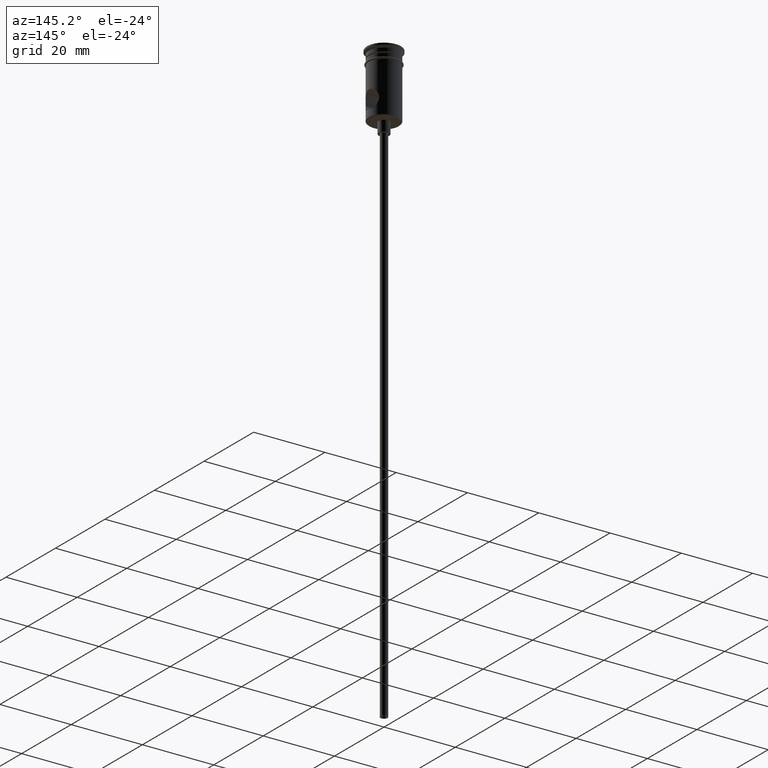
[diagram: clean part render]
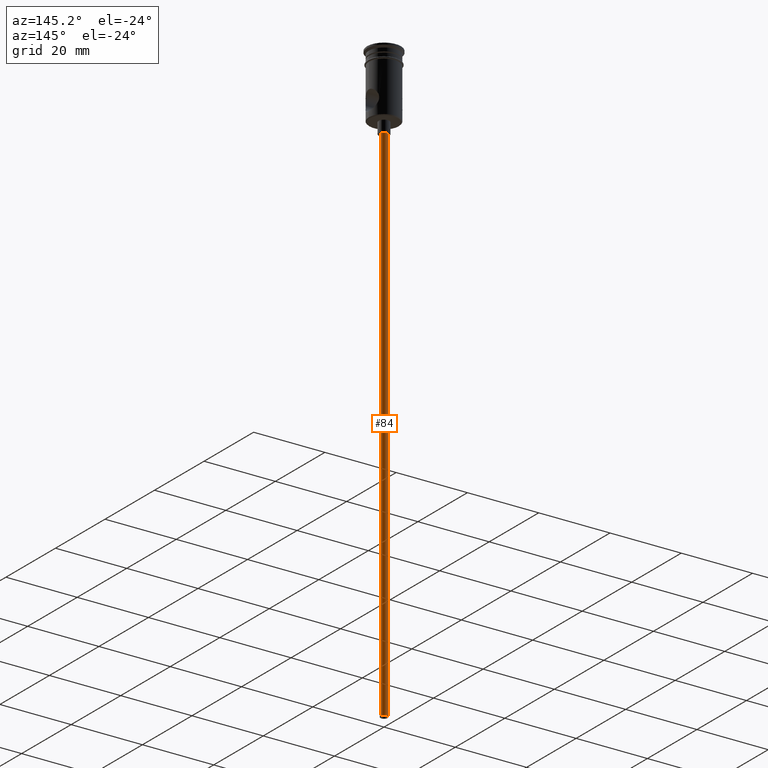
[diagram: same view with one face highlighted and labeled with its STEP entity id]
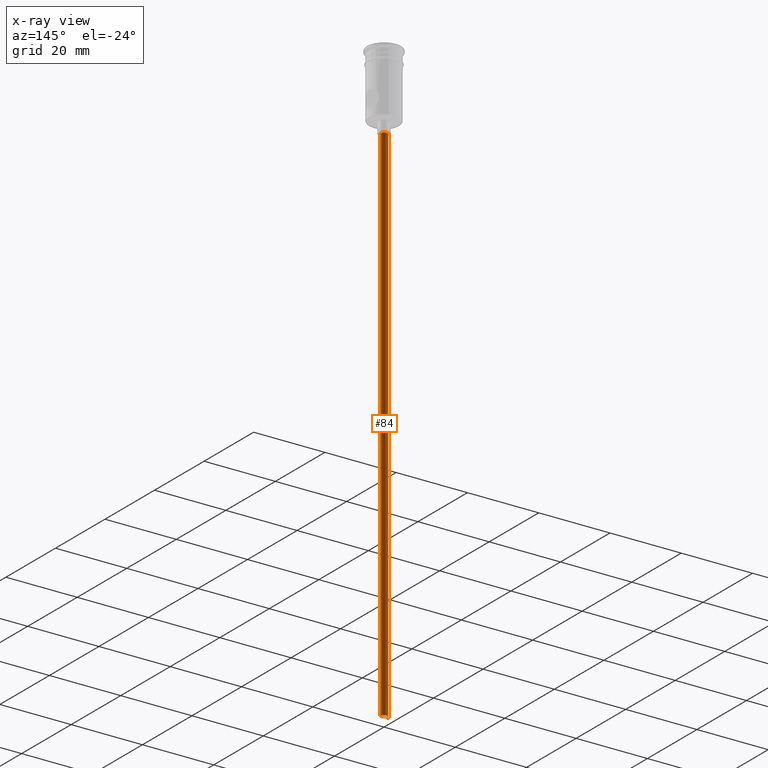
[diagram: x-ray of the same camera — body ghosted, the highlighted face saturated]
A machine part, auxiliary view. The second image highlights one B-rep face of the part: STEP entity #84.
The next image is the same camera in x-ray: the body ghosted, the highlighted face saturated — about 0% of this face is hidden behind the body in this view.
In plain terms, the highlighted cylindrical surface (edge-blend (fillet) strip) has radius 1 mm, axis along (-0, -0, 1).
Its self-contained STEP definition (entity closure, byte-faithful):
#26 = EDGE_CURVE ( 'NONE', #858, #341, #303, .T. ) ;
#35 = ORIENTED_EDGE ( 'NONE', *, *, #26, .F. ) ;
#54 = DIRECTION ( 'NONE',  ( -1.000000000000000000, 0.000000000000000000, 0.000000000000000000 ) ) ;
#84 = ADVANCED_FACE ( 'NONE', ( #1364 ), #615, .T. ) ;
#108 = EDGE_CURVE ( 'NONE', #341, #757, #402, .T. ) ;
#183 = EDGE_LOOP ( 'NONE', ( #35, #455, #1386, #1089 ) ) ;
#187 = CARTESIAN_POINT ( 'NONE',  ( 0.000000000000000000, 0.000000000000000000, -167.9999999999999716 ) ) ;
#239 = VECTOR ( 'NONE', #822, 1000.000000000000000 ) ;
#262 = CIRCLE ( 'NONE', #1032, 0.9999999999999997780 ) ;
#287 = DIRECTION ( 'NONE',  ( 0.000000000000000000, 0.000000000000000000, -1.000000000000000000 ) ) ;
#303 = CIRCLE ( 'NONE', #458, 0.9999999999999997780 ) ;
#341 = VERTEX_POINT ( 'NONE', #445 ) ;
#402 = LINE ( 'NONE', #511, #239 ) ;
#405 = DIRECTION ( 'NONE',  ( -0.000000000000000000, -0.000000000000000000, 1.000000000000000000 ) ) ;
#445 = CARTESIAN_POINT ( 'NONE',  ( 0.9999999999999997780, 0.000000000000000000, -167.9999999999999716 ) ) ;
#453 = EDGE_CURVE ( 'NONE', #858, #1352, #1265, .T. ) ;
#455 = ORIENTED_EDGE ( 'NONE', *, *, #453, .T. ) ;
#458 = AXIS2_PLACEMENT_3D ( 'NONE', #187, #287, #54 ) ;
#511 = CARTESIAN_POINT ( 'NONE',  ( 0.9999999999999997780, 0.000000000000000000, -167.9999999999999716 ) ) ;
#615 = CYLINDRICAL_SURFACE ( 'NONE', #812, 0.9999999999999997780 ) ;
#687 = DIRECTION ( 'NONE',  ( -1.000000000000000000, 0.000000000000000000, 0.000000000000000000 ) ) ;
#745 = VECTOR ( 'NONE', #405, 1000.000000000000000 ) ;
#757 = VERTEX_POINT ( 'NONE', #1302 ) ;
#812 = AXIS2_PLACEMENT_3D ( 'NONE', #1261, #1159, #1059 ) ;
#822 = DIRECTION ( 'NONE',  ( -0.000000000000000000, -0.000000000000000000, 1.000000000000000000 ) ) ;
#858 = VERTEX_POINT ( 'NONE', #1398 ) ;
#928 = CARTESIAN_POINT ( 'NONE',  ( 0.000000000000000000, 0.000000000000000000, -20.99999999999999645 ) ) ;
#1032 = AXIS2_PLACEMENT_3D ( 'NONE', #928, #1229, #687 ) ;
#1059 = DIRECTION ( 'NONE',  ( 1.000000000000000000, 0.000000000000000000, 0.000000000000000000 ) ) ;
#1089 = ORIENTED_EDGE ( 'NONE', *, *, #108, .F. ) ;
#1144 = EDGE_CURVE ( 'NONE', #1352, #757, #262, .T. ) ;
#1159 = DIRECTION ( 'NONE',  ( -0.000000000000000000, -0.000000000000000000, 1.000000000000000000 ) ) ;
#1229 = DIRECTION ( 'NONE',  ( 0.000000000000000000, 0.000000000000000000, -1.000000000000000000 ) ) ;
#1256 = CARTESIAN_POINT ( 'NONE',  ( -0.9999999999999997780, 1.224646799147352961E-16, -20.99999999999999645 ) ) ;
#1261 = CARTESIAN_POINT ( 'NONE',  ( 0.000000000000000000, 0.000000000000000000, -167.9999999999999716 ) ) ;
#1265 = LINE ( 'NONE', #1380, #745 ) ;
#1302 = CARTESIAN_POINT ( 'NONE',  ( 0.9999999999999997780, 0.000000000000000000, -20.99999999999999645 ) ) ;
#1352 = VERTEX_POINT ( 'NONE', #1256 ) ;
#1364 = FACE_OUTER_BOUND ( 'NONE', #183, .T. ) ;
#1380 = CARTESIAN_POINT ( 'NONE',  ( -0.9999999999999997780, 1.224646799147352961E-16, -167.9999999999999716 ) ) ;
#1386 = ORIENTED_EDGE ( 'NONE', *, *, #1144, .T. ) ;
#1398 = CARTESIAN_POINT ( 'NONE',  ( -0.9999999999999997780, 1.224646799147352961E-16, -167.9999999999999716 ) ) ;